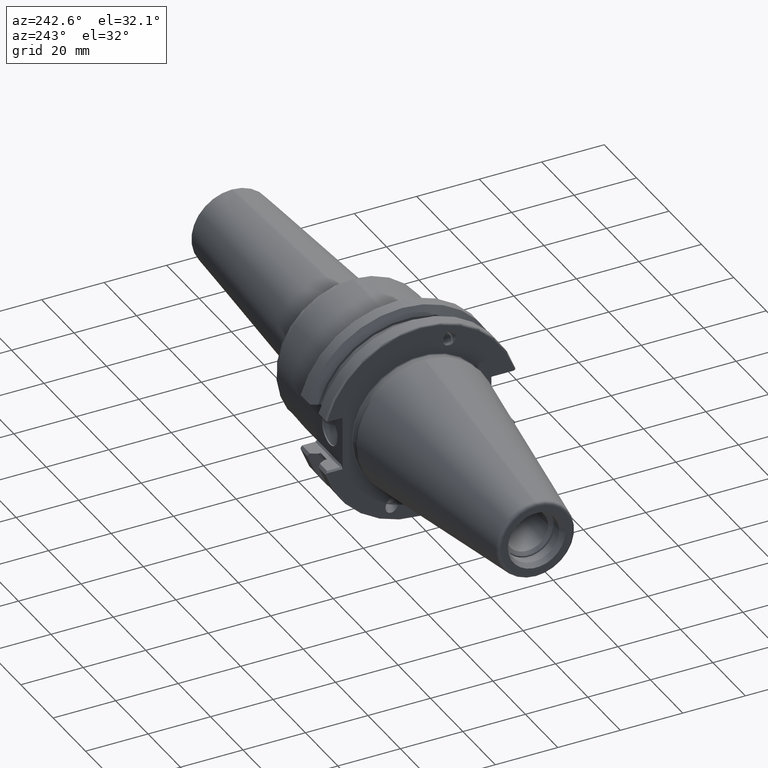
[diagram: clean part render]
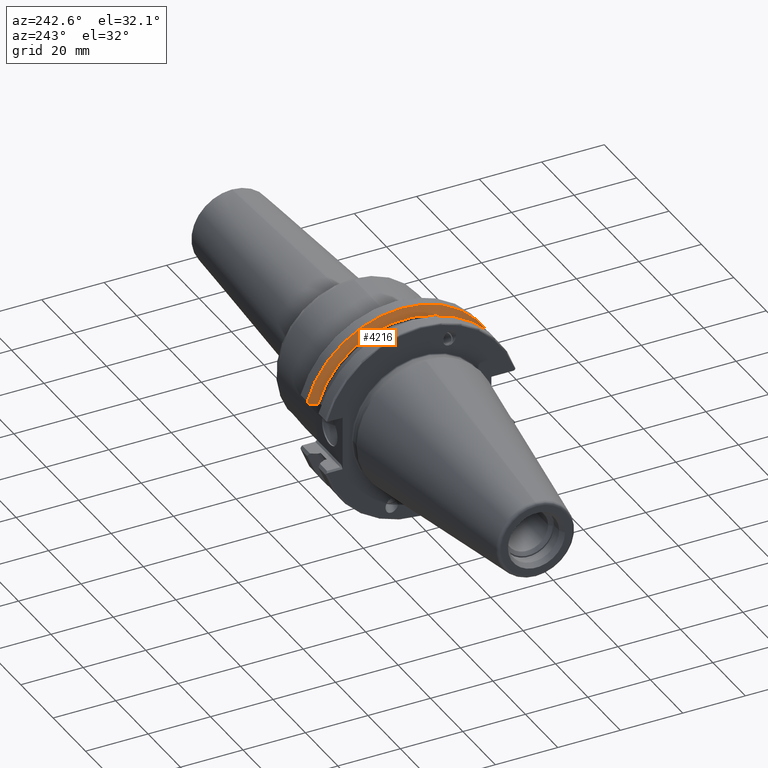
[diagram: same view with one face highlighted and labeled with its STEP entity id]
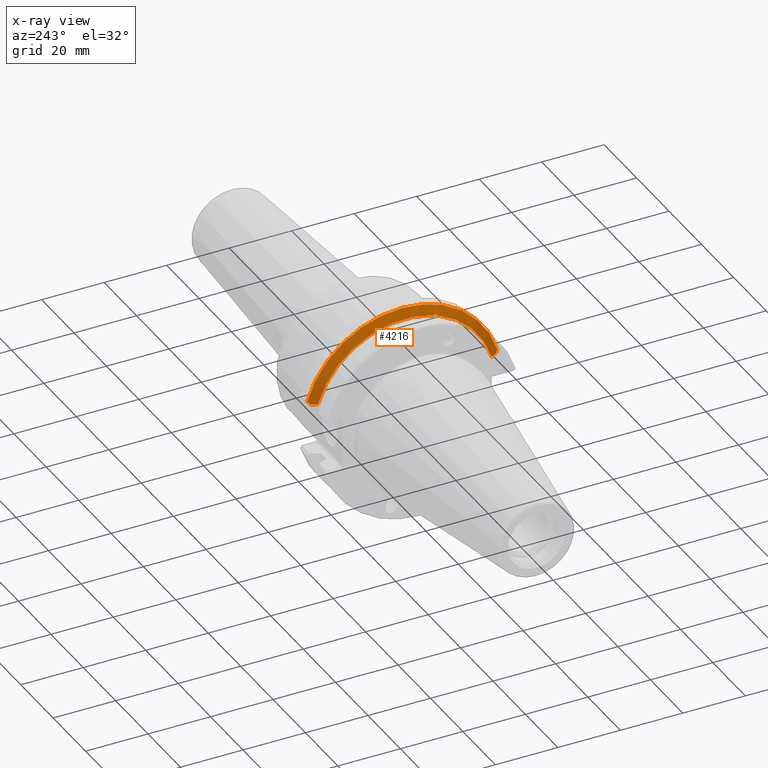
[diagram: x-ray of the same camera — body ghosted, the highlighted face saturated]
A machine part, auxiliary view. The second image highlights one B-rep face of the part: STEP entity #4216.
The next image is the same camera in x-ray: the body ghosted, the highlighted face saturated — about 0% of this face is hidden behind the body in this view.
In plain terms, the highlighted conical surface has half-angle 60 deg.
Its self-contained STEP definition (entity closure, byte-faithful):
#1605=CARTESIAN_POINT('',(1.30491E1,-9.090468942703E0,2.749572129551E1));
#1606=CARTESIAN_POINT('',(1.308383471133E1,-9.184366027132E0,2.752804268005E1));
#1607=CARTESIAN_POINT('',(1.314325877556E1,-9.368644198765E0,2.757483335650E1));
#1608=CARTESIAN_POINT('',(1.320239548945E1,-9.628478832505E0,2.759369326479E1));
#1609=CARTESIAN_POINT('',(1.323337412671E1,-9.873790589553E0,2.756386576202E1));
#1610=CARTESIAN_POINT('',(1.323643466587E1,-1.009546088028E1,2.748906000450E1));
#1611=CARTESIAN_POINT('',(1.321587927206E1,-1.028663963549E1,2.738002030205E1));
#1612=CARTESIAN_POINT('',(1.317588034874E1,-1.045286748174E1,2.724277366796E1));
#1613=CARTESIAN_POINT('',(1.311882847112E1,-1.059630556640E1,2.708118136715E1));
#1614=CARTESIAN_POINT('',(1.307342229586E1,-1.067438648279E1,2.696578575870E1));
#1615=CARTESIAN_POINT('',(1.30491E1,-1.071020574925E1,2.690618531059E1));
#1617=CARTESIAN_POINT('',(1.30491E1,0.E0,0.E0));
#1618=DIRECTION('',(-1.E0,0.E0,0.E0));
#1619=DIRECTION('',(0.E0,-3.139030758228E-1,9.494550326313E-1));
#1620=AXIS2_PLACEMENT_3D('',#1617,#1618,#1619);
#1622=CARTESIAN_POINT('',(1.414456097953E1,2.975013277281E1,8.19E0));
#1623=CARTESIAN_POINT('',(1.402026242049E1,2.952683227014E1,8.19E0));
#1624=CARTESIAN_POINT('',(1.377338175947E1,2.908296065829E1,8.19E0));
#1625=CARTESIAN_POINT('',(1.340822806305E1,2.842534536140E1,8.19E0));
#1626=CARTESIAN_POINT('',(1.316823367620E1,2.799237066391E1,8.19E0));
#1627=CARTESIAN_POINT('',(1.30491E1,2.777724275660E1,8.19E0));
#1629=CARTESIAN_POINT('',(1.466020913500E1,3.042082819764E1,9.090418679549E0));
#1630=CARTESIAN_POINT('',(1.457290735072E1,3.030819547169E1,8.939207553577E0));
#1631=CARTESIAN_POINT('',(1.439965644708E1,3.008378233033E1,8.637929541323E0));
#1632=CARTESIAN_POINT('',(1.422913407409E1,2.986106733897E1,8.338931320951E0));
#1633=CARTESIAN_POINT('',(1.414456097953E1,2.975013277281E1,8.19E0));
#1635=CARTESIAN_POINT('',(1.466020913500E1,0.E0,0.E0));
#1636=DIRECTION('',(1.E0,0.E0,0.E0));
#1637=DIRECTION('',(0.E0,9.581363211856E-1,2.863123993559E-1));
#1638=AXIS2_PLACEMENT_3D('',#1635,#1636,#1637);
#1640=CARTESIAN_POINT('',(1.414456097953E1,-2.975013277281E1,8.19E0));
#1641=CARTESIAN_POINT('',(1.422858999059E1,-2.986035366440E1,8.337973202119E0));
#1642=CARTESIAN_POINT('',(1.439856057419E1,-3.008235706926E1,8.636016106927E0));
#1643=CARTESIAN_POINT('',(1.457235577366E1,-3.030748385248E1,8.938252194093E0));
#1644=CARTESIAN_POINT('',(1.466020913500E1,-3.042082819764E1,9.090418679549E0));
#1646=CARTESIAN_POINT('',(1.30491E1,-2.777724275660E1,8.19E0));
#1647=CARTESIAN_POINT('',(1.316819556382E1,-2.799230184175E1,8.19E0));
#1648=CARTESIAN_POINT('',(1.340813902025E1,-2.842518482368E1,8.19E0));
#1649=CARTESIAN_POINT('',(1.377329199373E1,-2.908279917371E1,8.19E0));
#1650=CARTESIAN_POINT('',(1.402022390619E1,-2.952676307978E1,8.19E0));
#1651=CARTESIAN_POINT('',(1.414456097953E1,-2.975013277281E1,8.19E0));
#1653=CARTESIAN_POINT('',(1.30491E1,0.E0,0.E0));
#1654=DIRECTION('',(-1.E0,0.E0,0.E0));
#1655=DIRECTION('',(0.E0,-9.591762530767E-1,2.828089735736E-1));
#1656=AXIS2_PLACEMENT_3D('',#1653,#1654,#1655);
#2086=CARTESIAN_POINT('',(1.30491E1,2.777724275660E1,8.19E0));
#2087=VERTEX_POINT('',#2086);
#2102=CARTESIAN_POINT('',(1.30491E1,-2.777724275660E1,8.19E0));
#2103=VERTEX_POINT('',#2102);
#2108=VERTEX_POINT('',#1629);
#2109=VERTEX_POINT('',#1633);
#2118=VERTEX_POINT('',#1640);
#2119=VERTEX_POINT('',#1644);
#2352=CARTESIAN_POINT('',(1.30491E1,-1.071020574925E1,2.690618531059E1));
#2353=VERTEX_POINT('',#2352);
#2354=CARTESIAN_POINT('',(1.30491E1,-9.090468942703E0,2.749572129551E1));
#2355=VERTEX_POINT('',#2354);
#4198=CARTESIAN_POINT('',(1.385465456750E1,0.E0,0.E0));
#4199=DIRECTION('',(1.E0,0.E0,0.E0));
#4200=DIRECTION('',(0.E0,0.E0,1.E0));
#4201=AXIS2_PLACEMENT_3D('',#4198,#4199,#4200);
#4202=CONICAL_SURFACE('',#4201,3.035473856082E1,6.E1);
#4203=ORIENTED_EDGE('',*,*,#3254,.F.);
#4205=ORIENTED_EDGE('',*,*,#4204,.T.);
#4206=ORIENTED_EDGE('',*,*,#4111,.F.);
#4207=ORIENTED_EDGE('',*,*,#4138,.F.);
#4209=ORIENTED_EDGE('',*,*,#4208,.T.);
#4210=ORIENTED_EDGE('',*,*,#4165,.F.);
#4211=ORIENTED_EDGE('',*,*,#3526,.F.);
#4213=ORIENTED_EDGE('',*,*,#4212,.T.);
#4214=EDGE_LOOP('',(#4203,#4205,#4206,#4207,#4209,#4210,#4211,#4213));
#4215=FACE_OUTER_BOUND('',#4214,.F.);
#4216=ADVANCED_FACE('',(#4215),#4202,.T.);
#1616=B_SPLINE_CURVE_WITH_KNOTS('',3,(#1605,#1606,#1607,#1608,#1609,#1610,#1611,
#1612,#1613,#1614,#1615),.UNSPECIFIED.,.F.,.F.,(4,1,1,1,1,1,1,1,4),(0.E0,
1.25E-1,2.5E-1,3.75E-1,5.E-1,6.25E-1,7.5E-1,8.75E-1,1.E0),.UNSPECIFIED.);
#1621=CIRCLE('',#1620,2.895947712164E1);
#1628=B_SPLINE_CURVE_WITH_KNOTS('',3,(#1622,#1623,#1624,#1625,#1626,#1627),
.UNSPECIFIED.,.F.,.F.,(4,1,1,4),(0.E0,3.333333333333E-1,6.666666666667E-1,1.E0),
.UNSPECIFIED.);
#1634=B_SPLINE_CURVE_WITH_KNOTS('',3,(#1629,#1630,#1631,#1632,#1633),
.UNSPECIFIED.,.F.,.F.,(4,1,4),(0.E0,5.E-1,1.E0),.UNSPECIFIED.);
#1639=CIRCLE('',#1638,3.175E1);
#1645=B_SPLINE_CURVE_WITH_KNOTS('',3,(#1640,#1641,#1642,#1643,#1644),
.UNSPECIFIED.,.F.,.F.,(4,1,4),(0.E0,5.E-1,1.E0),.UNSPECIFIED.);
#1652=B_SPLINE_CURVE_WITH_KNOTS('',3,(#1646,#1647,#1648,#1649,#1650,#1651),
.UNSPECIFIED.,.F.,.F.,(4,1,1,4),(0.E0,3.333333333333E-1,6.666666666667E-1,1.E0),
.UNSPECIFIED.);
#1657=CIRCLE('',#1656,2.895947712164E1);
#3254=EDGE_CURVE('',#2355,#2353,#1616,.T.);
#3526=EDGE_CURVE('',#2103,#2118,#1652,.T.);
#4111=EDGE_CURVE('',#2109,#2087,#1628,.T.);
#4138=EDGE_CURVE('',#2108,#2109,#1634,.T.);
#4165=EDGE_CURVE('',#2118,#2119,#1645,.T.);
#4204=EDGE_CURVE('',#2355,#2087,#1621,.T.);
#4208=EDGE_CURVE('',#2108,#2119,#1639,.T.);
#4212=EDGE_CURVE('',#2103,#2353,#1657,.T.);